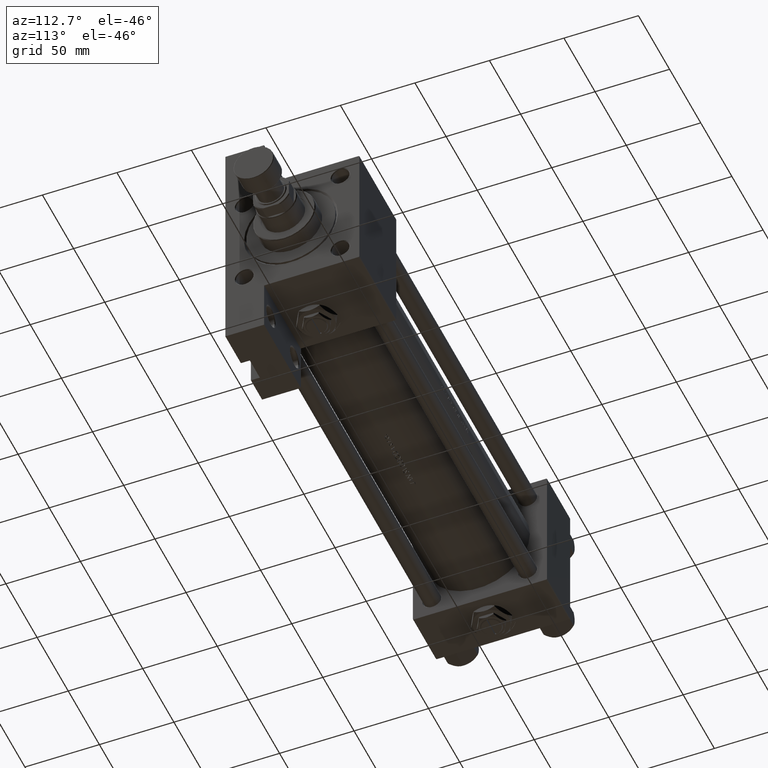
[diagram: clean part render]
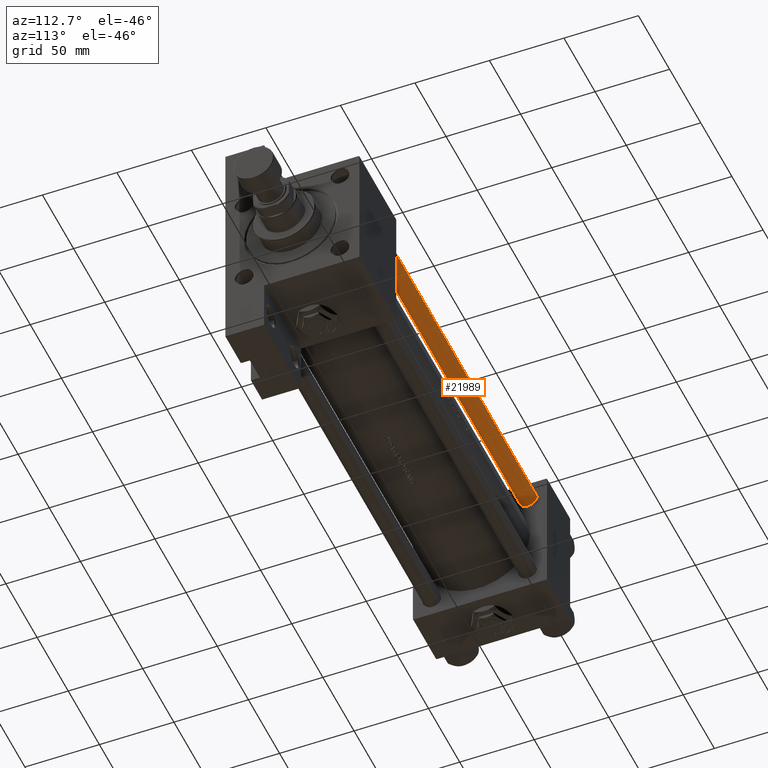
[diagram: same view with one face highlighted and labeled with its STEP entity id]
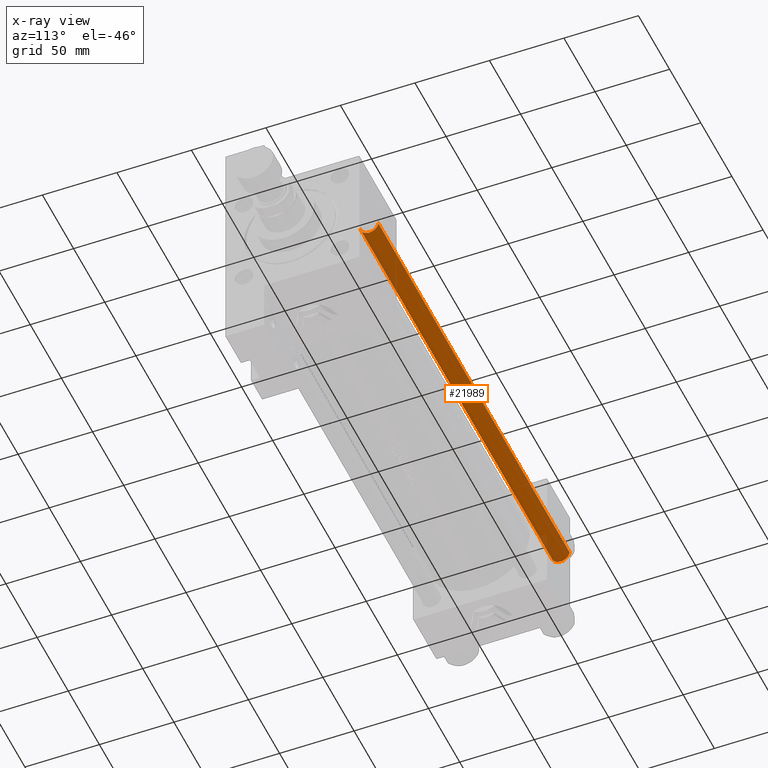
[diagram: x-ray of the same camera — body ghosted, the highlighted face saturated]
A machine part, auxiliary view. The second image highlights one B-rep face of the part: STEP entity #21989.
The next image is the same camera in x-ray: the body ghosted, the highlighted face saturated — about 8% of this face is hidden behind the body in this view.
In plain terms, the highlighted cylindrical surface (edge-blend (fillet) strip) has radius 6 mm, axis along (1, -0, 0).
Its self-contained STEP definition (entity closure, byte-faithful):
#65 = VERTEX_POINT ( 'NONE', #17461 ) ;
#1930 = FACE_OUTER_BOUND ( 'NONE', #43655, .T. ) ;
#2405 = DIRECTION ( 'NONE',  ( -0.000000000000000000, -0.000000000000000000, -1.000000000000000000 ) ) ;
#3410 = EDGE_CURVE ( 'NONE', #65, #38208, #6748, .T. ) ;
#3537 = DIRECTION ( 'NONE',  ( -0.000000000000000000, -0.000000000000000000, -1.000000000000000000 ) ) ;
#3931 = CIRCLE ( 'NONE', #39596, 6.000000000000000888 ) ;
#4956 = VERTEX_POINT ( 'NONE', #18843 ) ;
#5480 = DIRECTION ( 'NONE',  ( -1.000000000000000000, 0.000000000000000000, 0.000000000000000000 ) ) ;
#6205 = CARTESIAN_POINT ( 'NONE',  ( 6.000000000000000888, 7.347880794884120722E-16, 308.0000000000000000 ) ) ;
#6344 = CARTESIAN_POINT ( 'NONE',  ( 6.000000000000000888, 7.347880794884120722E-16, 307.4999999999999432 ) ) ;
#6748 = CIRCLE ( 'NONE', #22969, 6.000000000000000888 ) ;
#8304 = ORIENTED_EDGE ( 'NONE', *, *, #3410, .T. ) ;
#10248 = DIRECTION ( 'NONE',  ( 1.000000000000000000, 0.000000000000000000, 0.000000000000000000 ) ) ;
#10836 = VERTEX_POINT ( 'NONE', #6344 ) ;
#14557 = CARTESIAN_POINT ( 'NONE',  ( 0.000000000000000000, 0.000000000000000000, 307.4999999999999432 ) ) ;
#14953 = AXIS2_PLACEMENT_3D ( 'NONE', #32394, #37200, #5480 ) ;
#16618 = ORIENTED_EDGE ( 'NONE', *, *, #32458, .T. ) ;
#16953 = VECTOR ( 'NONE', #3537, 1000.000000000000000 ) ;
#17461 = CARTESIAN_POINT ( 'NONE',  ( 6.000000000000000888, 7.347880794884120722E-16, 0.5000000000000559552 ) ) ;
#18194 = CARTESIAN_POINT ( 'NONE',  ( 0.000000000000000000, 0.000000000000000000, 0.5000000000000559552 ) ) ;
#18843 = CARTESIAN_POINT ( 'NONE',  ( -6.000000000000000888, 0.000000000000000000, 307.4999999999999432 ) ) ;
#21663 = CARTESIAN_POINT ( 'NONE',  ( -6.000000000000000888, 0.000000000000000000, 0.5000000000000559552 ) ) ;
#21989 = ADVANCED_FACE ( 'NONE', ( #1930 ), #29071, .T. ) ;
#22196 = DIRECTION ( 'NONE',  ( 0.000000000000000000, 0.000000000000000000, -1.000000000000000000 ) ) ;
#22969 = AXIS2_PLACEMENT_3D ( 'NONE', #18194, #36294, #32237 ) ;
#27282 = EDGE_CURVE ( 'NONE', #10836, #65, #37186, .T. ) ;
#28959 = ORIENTED_EDGE ( 'NONE', *, *, #27282, .T. ) ;
#29071 = CYLINDRICAL_SURFACE ( 'NONE', #14953, 6.000000000000000888 ) ;
#32237 = DIRECTION ( 'NONE',  ( 1.000000000000000000, 0.000000000000000000, 0.000000000000000000 ) ) ;
#32394 = CARTESIAN_POINT ( 'NONE',  ( 0.000000000000000000, 0.000000000000000000, 308.0000000000000000 ) ) ;
#32458 = EDGE_CURVE ( 'NONE', #4956, #10836, #3931, .T. ) ;
#33800 = VECTOR ( 'NONE', #2405, 1000.000000000000000 ) ;
#35504 = ORIENTED_EDGE ( 'NONE', *, *, #36011, .F. ) ;
#36011 = EDGE_CURVE ( 'NONE', #4956, #38208, #41376, .T. ) ;
#36294 = DIRECTION ( 'NONE',  ( -0.000000000000000000, -0.000000000000000000, 1.000000000000000000 ) ) ;
#37186 = LINE ( 'NONE', #6205, #33800 ) ;
#37200 = DIRECTION ( 'NONE',  ( -0.000000000000000000, -0.000000000000000000, -1.000000000000000000 ) ) ;
#38208 = VERTEX_POINT ( 'NONE', #21663 ) ;
#39596 = AXIS2_PLACEMENT_3D ( 'NONE', #14557, #22196, #10248 ) ;
#41376 = LINE ( 'NONE', #49737, #16953 ) ;
#43655 = EDGE_LOOP ( 'NONE', ( #16618, #28959, #8304, #35504 ) ) ;
#49737 = CARTESIAN_POINT ( 'NONE',  ( -6.000000000000000888, 0.000000000000000000, 308.0000000000000000 ) ) ;